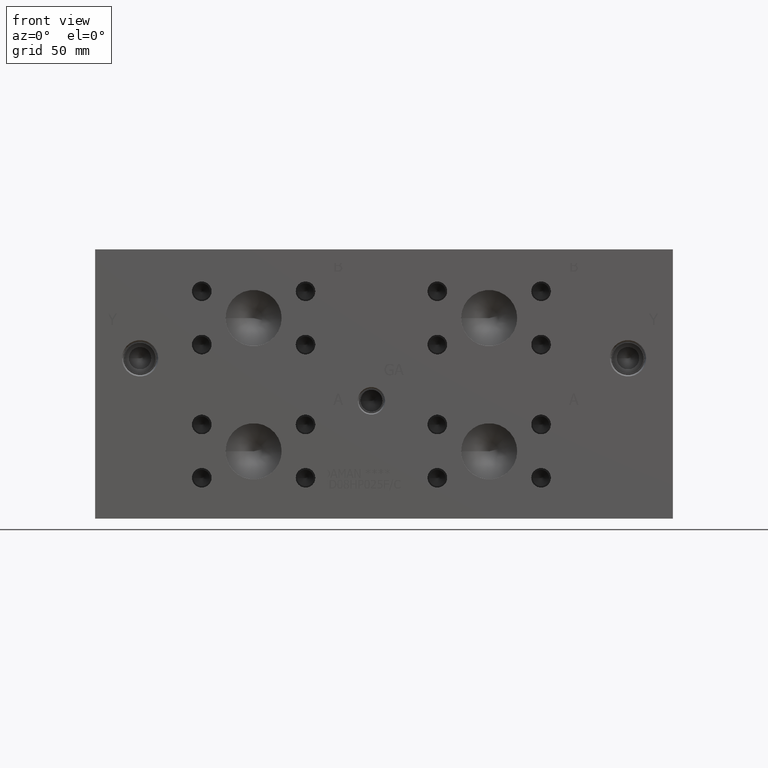
[diagram: clean part render]
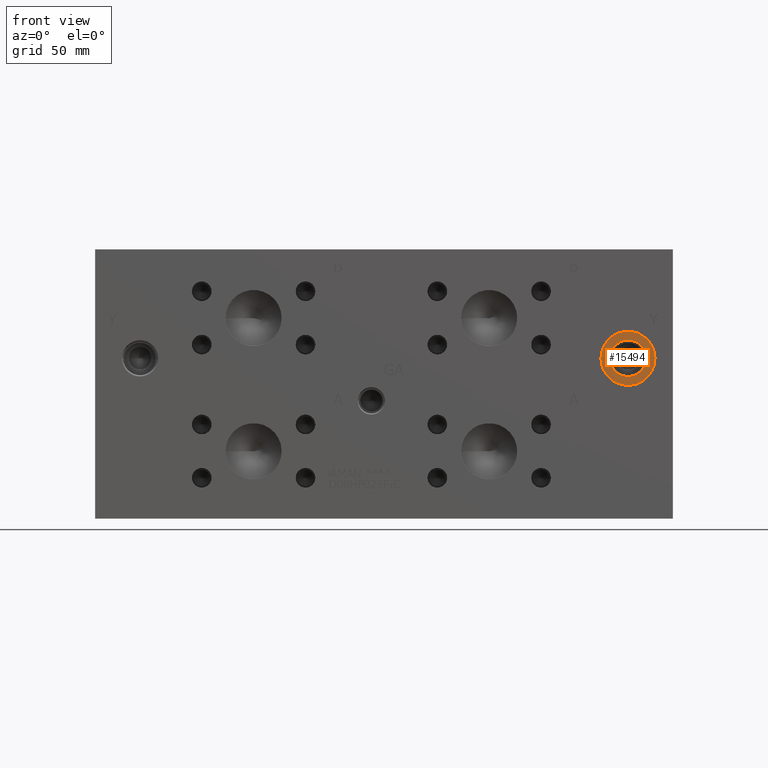
[diagram: same view with one face highlighted and labeled with its STEP entity id]
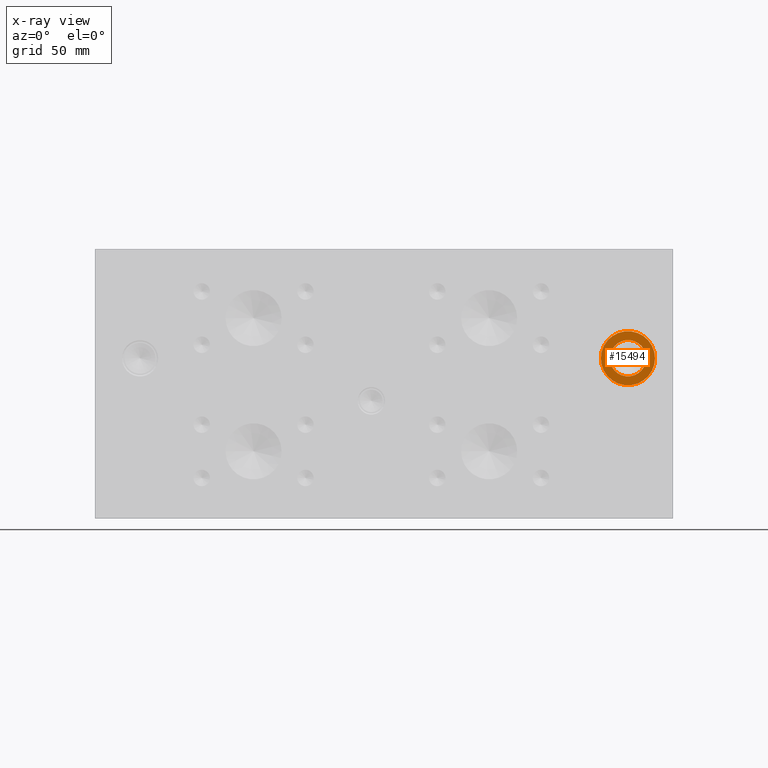
[diagram: x-ray of the same camera — body ghosted, the highlighted face saturated]
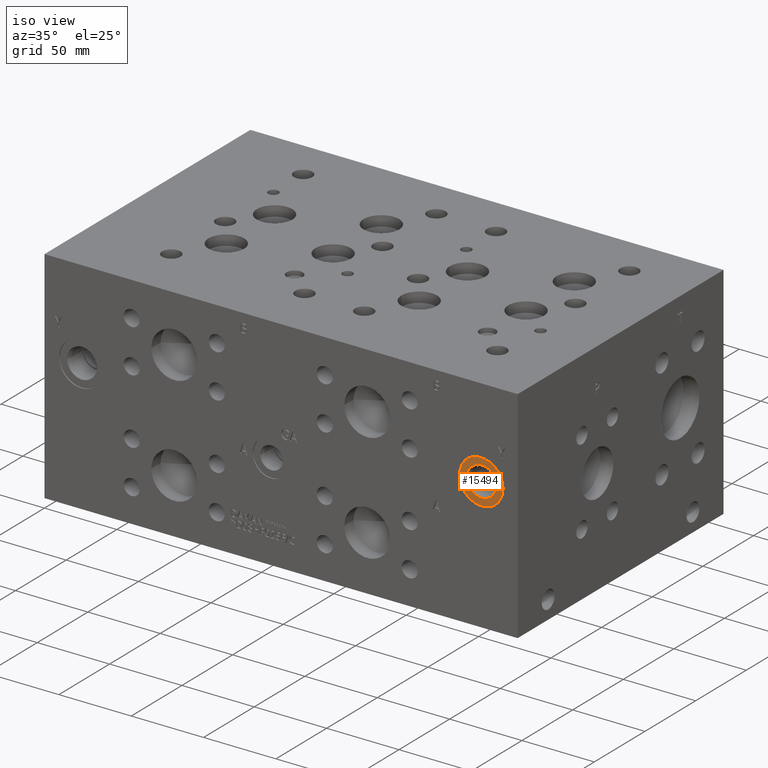
[diagram: same view with one face highlighted and labeled with its STEP entity id]
A machine part, front view. The second image highlights one B-rep face of the part: STEP entity #15494.
The next image is the same camera in x-ray: the body ghosted, the highlighted face saturated — about 0% of this face is hidden behind the body in this view.
A second angle (iso view) of the same face is appended — the face is thin or edge-on in the first view.
In plain terms, the highlighted planar face has unit normal (0, 1, 0).
Its self-contained STEP definition (entity closure, byte-faithful):
#408=CIRCLE('',#16326,15.3162);
#409=CIRCLE('',#16327,15.3162);
#410=CIRCLE('',#16329,10.2997);
#411=CIRCLE('',#16330,10.2997);
#858=FACE_BOUND('',#2926,.T.);
#2003=FACE_OUTER_BOUND('',#2925,.T.);
#2925=EDGE_LOOP('',(#12795,#12796));
#2926=EDGE_LOOP('',(#12797,#12798));
#7046=VERTEX_POINT('',#26058);
#7047=VERTEX_POINT('',#26060);
#7048=VERTEX_POINT('',#26064);
#7049=VERTEX_POINT('',#26065);
#9098=EDGE_CURVE('',#7046,#7047,#408,.T.);
#9099=EDGE_CURVE('',#7047,#7046,#409,.T.);
#9100=EDGE_CURVE('',#7048,#7049,#410,.T.);
#9101=EDGE_CURVE('',#7049,#7048,#411,.T.);
#12795=ORIENTED_EDGE('',*,*,#9099,.F.);
#12796=ORIENTED_EDGE('',*,*,#9098,.F.);
#12797=ORIENTED_EDGE('',*,*,#9100,.T.);
#12798=ORIENTED_EDGE('',*,*,#9101,.T.);
#14360=PLANE('',#16328);
#15494=ADVANCED_FACE('',(#2003,#858),#14360,.F.);
#16326=AXIS2_PLACEMENT_3D('',#26061,#19203,#19204);
#16327=AXIS2_PLACEMENT_3D('',#26062,#19205,#19206);
#16328=AXIS2_PLACEMENT_3D('',#26063,#19207,#19208);
#16329=AXIS2_PLACEMENT_3D('',#26066,#19209,#19210);
#16330=AXIS2_PLACEMENT_3D('',#26067,#19211,#19212);
#19203=DIRECTION('center_axis',(0.,1.,0.));
#19204=DIRECTION('ref_axis',(1.,0.,0.));
#19205=DIRECTION('center_axis',(0.,1.,0.));
#19206=DIRECTION('ref_axis',(1.,0.,0.));
#19207=DIRECTION('center_axis',(0.,1.,0.));
#19208=DIRECTION('ref_axis',(0.,0.,1.));
#19209=DIRECTION('center_axis',(0.,1.,0.));
#19210=DIRECTION('ref_axis',(1.,0.,0.));
#19211=DIRECTION('center_axis',(0.,1.,0.));
#19212=DIRECTION('ref_axis',(1.,0.,0.));
#26058=CARTESIAN_POINT('',(286.3088,0.7874,90.7542));
#26060=CARTESIAN_POINT('',(316.9412,0.7874,90.7542));
#26061=CARTESIAN_POINT('Origin',(301.625,0.7874,90.7542));
#26062=CARTESIAN_POINT('Origin',(301.625,0.7874,90.7542));
#26063=CARTESIAN_POINT('Origin',(311.9247,0.7874,90.7542));
#26064=CARTESIAN_POINT('',(311.9247,0.7874,90.7542));
#26065=CARTESIAN_POINT('',(291.3253,0.7874,90.7542));
#26066=CARTESIAN_POINT('Origin',(301.625,0.7874,90.7542));
#26067=CARTESIAN_POINT('Origin',(301.625,0.7874,90.7542));